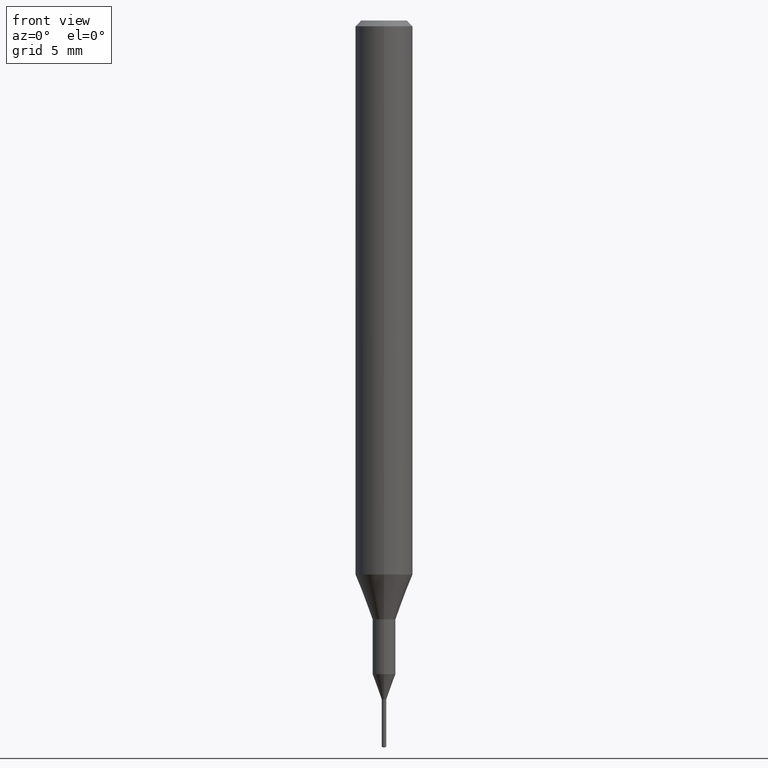
[diagram: clean part render]
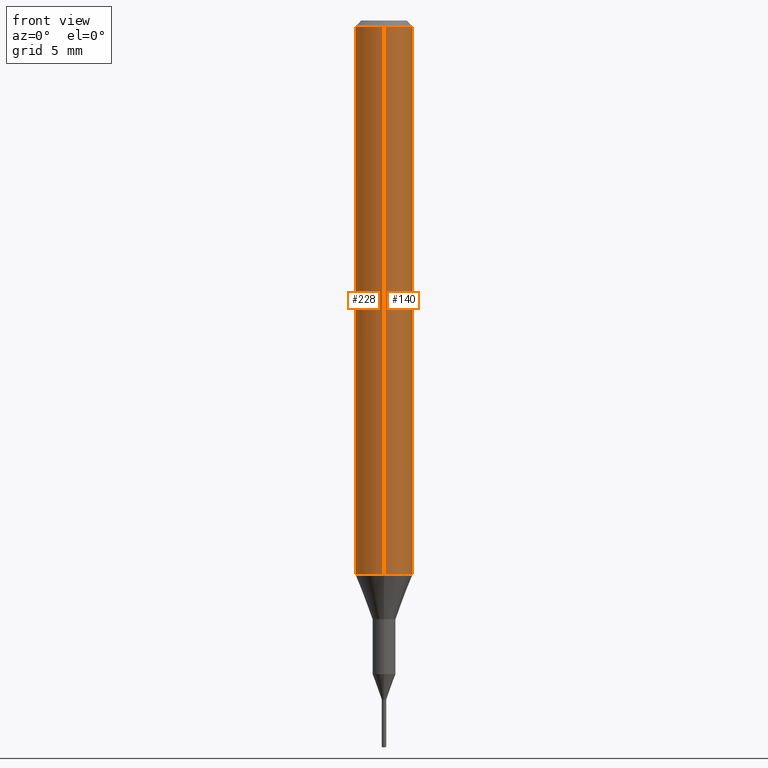
[diagram: same view with one multi-face feature highlighted, each face labeled with its STEP entity id]
A machine part, front view. The highlighted faces form ONE feature: a constant-radius fillet chain: 2 tangent blend faces with common blend radius 1.5 mm. The faces share edges in the B-rep.
Their STEP definitions:
[1] entity #140 (Cylinder):
#114=EDGE_CURVE('',#260,#248,#291,.T.);
#128=EDGE_CURVE('',#166,#260,#308,.T.);
#136=EDGE_CURVE('',#196,#166,#316,.T.);
#140=ADVANCED_FACE('',(#320),#321,.T.);
#166=VERTEX_POINT('',#349);
#196=VERTEX_POINT('',#386);
#248=VERTEX_POINT('',#442);
#254=EDGE_CURVE('',#196,#248,#448,.T.);
#260=VERTEX_POINT('',#455);
#291=LINE('',#482,#483);
#308=CIRCLE('',#500,1.5);
#316=LINE('',#511,#512);
#320=FACE_OUTER_BOUND('',#518,.T.);
#321=CYLINDRICAL_SURFACE('',#519,1.5);
#349=CARTESIAN_POINT('',(0.0,1.5,-28.955));
#386=CARTESIAN_POINT('',(0.0,1.5,-0.300000000000001));
#442=CARTESIAN_POINT('',(1.83690953073357E-016,-1.5,-0.300000000000001));
#448=CIRCLE('',#686,1.5);
#455=CARTESIAN_POINT('',(1.83690953073357E-016,-1.5,-28.955));
#482=CARTESIAN_POINT('',(1.83690953073357E-016,-1.5,-14.6275));
#483=VECTOR('',#708,1.0);
#500=AXIS2_PLACEMENT_3D('',#737,#738,#739);
#511=CARTESIAN_POINT('',(-1.83690953073357E-016,1.5,-14.6275));
#512=VECTOR('',#746,1.0);
#518=EDGE_LOOP('',(#749,#750,#751,#752));
#519=AXIS2_PLACEMENT_3D('',#753,#754,#755);
#686=AXIS2_PLACEMENT_3D('',#904,#905,#906);
#708=DIRECTION('',(-0.0,-0.0,1.0));
#737=CARTESIAN_POINT('',(0.0,0.0,-28.955));
#738=DIRECTION('',(0.0,0.0,-1.0));
#739=DIRECTION('',(0.0,1.0,0.0));
#746=DIRECTION('',(0.0,0.0,-1.0));
#749=ORIENTED_EDGE('',*,*,#136,.F.);
#750=ORIENTED_EDGE('',*,*,#254,.T.);
#751=ORIENTED_EDGE('',*,*,#114,.F.);
#752=ORIENTED_EDGE('',*,*,#128,.F.);
#753=CARTESIAN_POINT('',(0.0,0.0,-14.6275));
#754=DIRECTION('',(-0.0,-0.0,1.0));
#755=DIRECTION('',(0.0,1.0,0.0));
#904=CARTESIAN_POINT('',(0.0,0.0,-0.300000000000001));
#905=DIRECTION('',(0.0,0.0,-1.0));
#906=DIRECTION('',(0.0,1.0,0.0));
[2] entity #228 (Cylinder):
#114=EDGE_CURVE('',#260,#248,#291,.T.);
#134=EDGE_CURVE('',#248,#196,#314,.T.);
#136=EDGE_CURVE('',#196,#166,#316,.T.);
#166=VERTEX_POINT('',#349);
#196=VERTEX_POINT('',#386);
#228=ADVANCED_FACE('',(#420),#421,.T.);
#236=EDGE_CURVE('',#260,#166,#429,.T.);
#248=VERTEX_POINT('',#442);
#260=VERTEX_POINT('',#455);
#291=LINE('',#482,#483);
#314=CIRCLE('',#508,1.5);
#316=LINE('',#511,#512);
#349=CARTESIAN_POINT('',(0.0,1.5,-28.955));
#386=CARTESIAN_POINT('',(0.0,1.5,-0.300000000000001));
#420=FACE_OUTER_BOUND('',#644,.T.);
#421=CYLINDRICAL_SURFACE('',#645,1.5);
#429=CIRCLE('',#658,1.5);
#442=CARTESIAN_POINT('',(1.83690953073357E-016,-1.5,-0.300000000000001));
#455=CARTESIAN_POINT('',(1.83690953073357E-016,-1.5,-28.955));
#482=CARTESIAN_POINT('',(1.83690953073357E-016,-1.5,-14.6275));
#483=VECTOR('',#708,1.0);
#508=AXIS2_PLACEMENT_3D('',#743,#744,#745);
#511=CARTESIAN_POINT('',(-1.83690953073357E-016,1.5,-14.6275));
#512=VECTOR('',#746,1.0);
#644=EDGE_LOOP('',(#872,#873,#874,#875));
#645=AXIS2_PLACEMENT_3D('',#876,#877,#878);
#658=AXIS2_PLACEMENT_3D('',#886,#887,#888);
#708=DIRECTION('',(-0.0,-0.0,1.0));
#743=CARTESIAN_POINT('',(0.0,0.0,-0.300000000000001));
#744=DIRECTION('',(0.0,0.0,-1.0));
#745=DIRECTION('',(0.0,1.0,0.0));
#746=DIRECTION('',(0.0,0.0,-1.0));
#872=ORIENTED_EDGE('',*,*,#136,.T.);
#873=ORIENTED_EDGE('',*,*,#236,.F.);
#874=ORIENTED_EDGE('',*,*,#114,.T.);
#875=ORIENTED_EDGE('',*,*,#134,.T.);
#876=CARTESIAN_POINT('',(0.0,0.0,-14.6275));
#877=DIRECTION('',(-0.0,-0.0,1.0));
#878=DIRECTION('',(0.0,1.0,0.0));
#886=CARTESIAN_POINT('',(0.0,0.0,-28.955));
#887=DIRECTION('',(0.0,0.0,-1.0));
#888=DIRECTION('',(0.0,1.0,0.0));